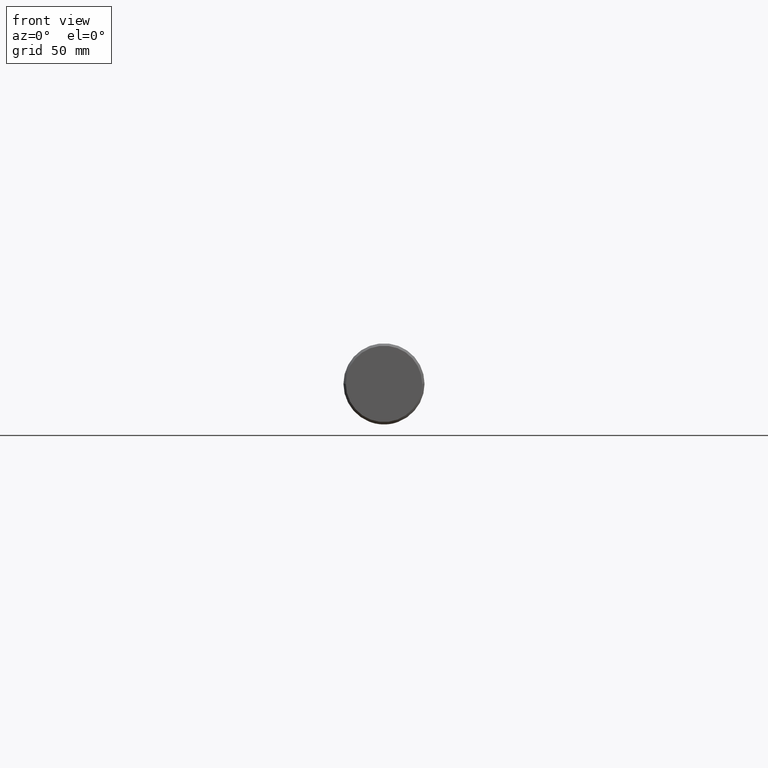
[diagram: clean part render]
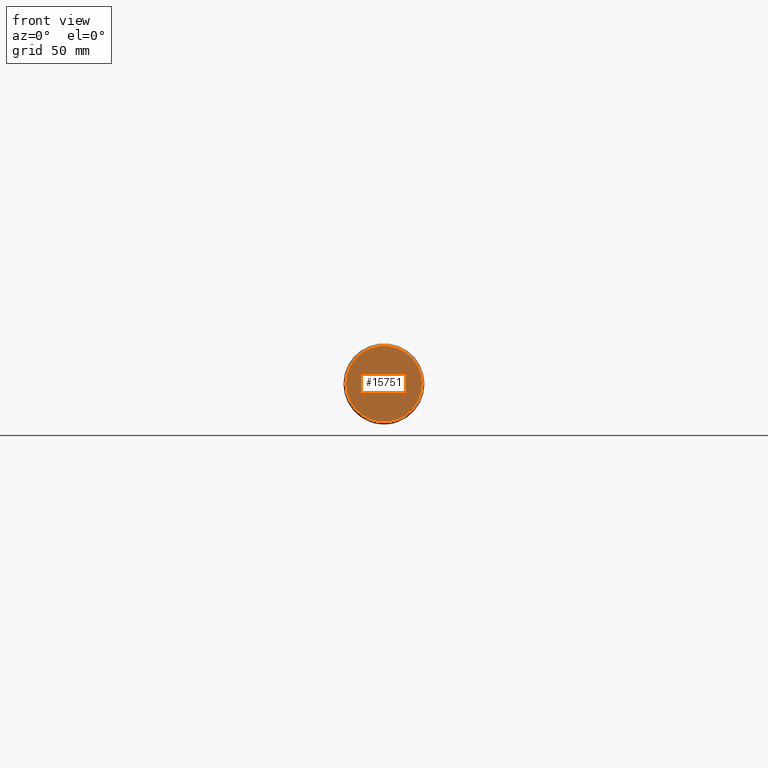
[diagram: same view with one face highlighted and labeled with its STEP entity id]
A machine part, front view. The second image highlights one B-rep face of the part: STEP entity #15751.
In plain terms, the highlighted planar face has unit normal (-0, 1, 0).
Its self-contained STEP definition (entity closure, byte-faithful):
#420 = AXIS2_PLACEMENT_3D ( 'NONE', #4713, #3409, #8460 ) ;
#535 = EDGE_LOOP ( 'NONE', ( #7656, #1471 ) ) ;
#1471 = ORIENTED_EDGE ( 'NONE', *, *, #10564, .F. ) ;
#1832 = CARTESIAN_POINT ( 'NONE',  ( 4.898587196589414100E-014, -150.0000000000000000, 0.0000000000000000000 ) ) ;
#2265 = VERTEX_POINT ( 'NONE', #11640 ) ;
#3081 = EDGE_CURVE ( 'NONE', #2265, #15743, #6535, .T. ) ;
#3299 = CARTESIAN_POINT ( 'NONE',  ( 15.85000000000006200, -150.0000000000000000, 2.002297516605923900E-015 ) ) ;
#3409 = DIRECTION ( 'NONE',  ( -3.061616997868382600E-016, 1.000000000000000000, 0.0000000000000000000 ) ) ;
#4713 = CARTESIAN_POINT ( 'NONE',  ( 4.898587196589414100E-014, -150.0000000000000000, 0.0000000000000000000 ) ) ;
#6535 = CIRCLE ( 'NONE', #11614, 15.85000000000001400 ) ;
#6729 = DIRECTION ( 'NONE',  ( -1.000000000000000000, 0.0000000000000000000, 0.0000000000000000000 ) ) ;
#6868 = DIRECTION ( 'NONE',  ( -1.000000000000000000, 0.0000000000000000000, 0.0000000000000000000 ) ) ;
#7656 = ORIENTED_EDGE ( 'NONE', *, *, #3081, .F. ) ;
#7828 = CIRCLE ( 'NONE', #15240, 15.85000000000001400 ) ;
#8460 = DIRECTION ( 'NONE',  ( -1.000000000000000000, -3.061616997868382600E-016, 0.0000000000000000000 ) ) ;
#10564 = EDGE_CURVE ( 'NONE', #15743, #2265, #7828, .T. ) ;
#10668 = DIRECTION ( 'NONE',  ( -3.061616997868382600E-016, 1.000000000000000000, -0.0000000000000000000 ) ) ;
#10974 = PLANE ( 'NONE',  #420 ) ;
#11614 = AXIS2_PLACEMENT_3D ( 'NONE', #1832, #10668, #6729 ) ;
#11640 = CARTESIAN_POINT ( 'NONE',  ( -15.84999999999996400, -150.0000000000000000, 0.0000000000000000000 ) ) ;
#12175 = FACE_OUTER_BOUND ( 'NONE', #535, .T. ) ;
#14331 = DIRECTION ( 'NONE',  ( -3.061616997868382600E-016, 1.000000000000000000, -0.0000000000000000000 ) ) ;
#14439 = CARTESIAN_POINT ( 'NONE',  ( 4.898587196589414100E-014, -150.0000000000000000, 0.0000000000000000000 ) ) ;
#15240 = AXIS2_PLACEMENT_3D ( 'NONE', #14439, #14331, #6868 ) ;
#15743 = VERTEX_POINT ( 'NONE', #3299 ) ;
#15751 = ADVANCED_FACE ( 'NONE', ( #12175 ), #10974, .F. ) ;